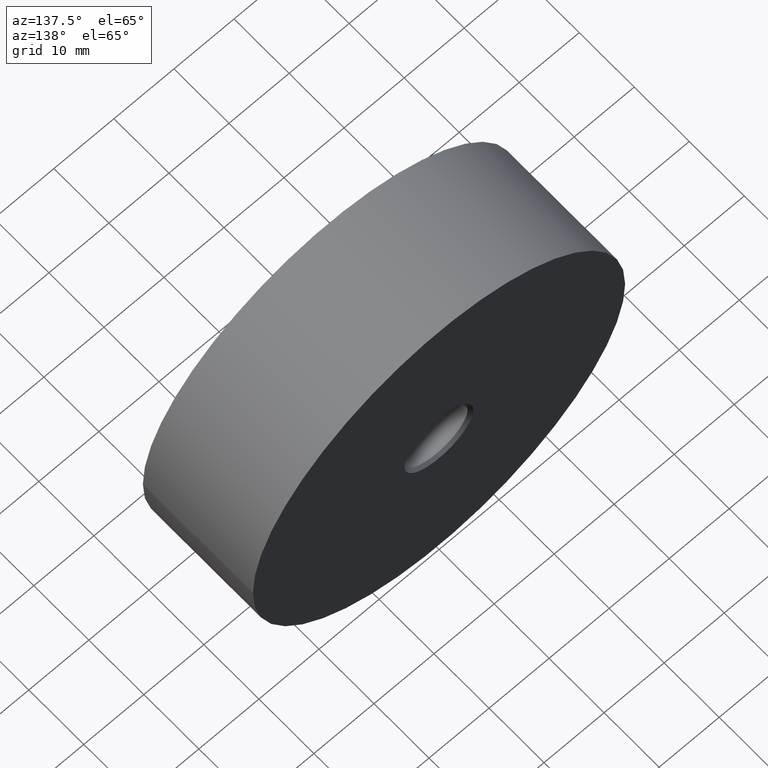
[diagram: clean part render]
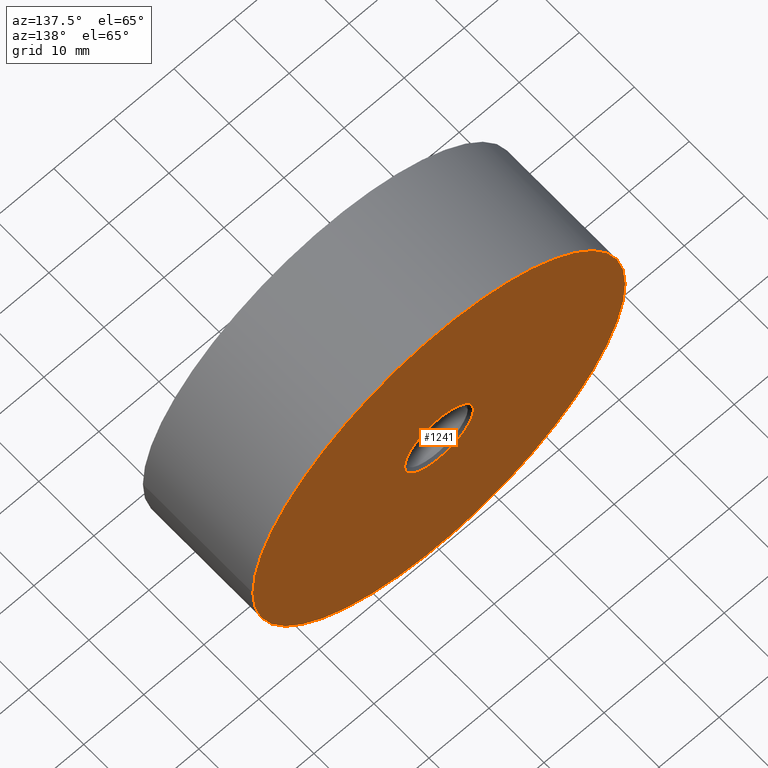
[diagram: same view with one face highlighted and labeled with its STEP entity id]
A machine part, auxiliary view. The second image highlights one B-rep face of the part: STEP entity #1241.
In plain terms, the highlighted planar face has unit normal (-0, 1, 0).
Its self-contained STEP definition (entity closure, byte-faithful):
#114 = ORIENTED_EDGE ( 'NONE', *, *, #5784, .T. ) ;
#337 = AXIS2_PLACEMENT_3D ( 'NONE', #8164, #3629, #5922 ) ;
#1241 = ADVANCED_FACE ( 'NONE', ( #14102, #9570 ), #12971, .T. ) ;
#1542 = CARTESIAN_POINT ( 'NONE',  ( -31.00000000000000711, 19.99999999999999645, 0.000000000000000000 ) ) ;
#1598 = CARTESIAN_POINT ( 'NONE',  ( 5.749999999999995559, 19.99999999999999645, 7.041719095097279894E-16 ) ) ;
#1998 = CIRCLE ( 'NONE', #337, 31.00000000000000355 ) ;
#3001 = ORIENTED_EDGE ( 'NONE', *, *, #6973, .F. ) ;
#3227 = CARTESIAN_POINT ( 'NONE',  ( -3.469446951953614189E-15, 19.99999999999999645, 0.000000000000000000 ) ) ;
#3629 = DIRECTION ( 'NONE',  ( -1.734723475976807341E-16, 1.000000000000000000, -0.000000000000000000 ) ) ;
#4315 = EDGE_LOOP ( 'NONE', ( #9784, #114 ) ) ;
#4438 = DIRECTION ( 'NONE',  ( -1.000000000000000000, -2.238352872228138170E-16, 0.000000000000000000 ) ) ;
#5427 = CARTESIAN_POINT ( 'NONE',  ( -5.750000000000000888, 19.99999999999999645, 0.000000000000000000 ) ) ;
#5674 = EDGE_CURVE ( 'NONE', #11724, #12933, #8140, .T. ) ;
#5784 = EDGE_CURVE ( 'NONE', #6417, #12884, #1998, .T. ) ;
#5922 = DIRECTION ( 'NONE',  ( -1.000000000000000000, -2.238352872228138170E-16, 0.000000000000000000 ) ) ;
#6297 = AXIS2_PLACEMENT_3D ( 'NONE', #3227, #11291, #12296 ) ;
#6320 = DIRECTION ( 'NONE',  ( -1.734723475976807341E-16, 1.000000000000000000, -0.000000000000000000 ) ) ;
#6417 = VERTEX_POINT ( 'NONE', #12088 ) ;
#6691 = EDGE_LOOP ( 'NONE', ( #14453, #3001 ) ) ;
#6973 = EDGE_CURVE ( 'NONE', #12933, #11724, #12201, .T. ) ;
#8140 = CIRCLE ( 'NONE', #6297, 5.749999999999998224 ) ;
#8164 = CARTESIAN_POINT ( 'NONE',  ( -3.469446951953614978E-15, 20.00000000000000355, 0.000000000000000000 ) ) ;
#8612 = CARTESIAN_POINT ( 'NONE',  ( -3.469446951953614189E-15, 19.99999999999999645, 0.000000000000000000 ) ) ;
#8955 = CARTESIAN_POINT ( 'NONE',  ( -3.469446951953614978E-15, 20.00000000000000355, 0.000000000000000000 ) ) ;
#9570 = FACE_BOUND ( 'NONE', #6691, .T. ) ;
#9784 = ORIENTED_EDGE ( 'NONE', *, *, #12565, .T. ) ;
#9803 = AXIS2_PLACEMENT_3D ( 'NONE', #11772, #12863, #12919 ) ;
#11291 = DIRECTION ( 'NONE',  ( -1.734723475976807341E-16, 1.000000000000000000, -0.000000000000000000 ) ) ;
#11314 = DIRECTION ( 'NONE',  ( -1.734723475976807341E-16, 1.000000000000000000, -0.000000000000000000 ) ) ;
#11724 = VERTEX_POINT ( 'NONE', #5427 ) ;
#11772 = CARTESIAN_POINT ( 'NONE',  ( -31.00000000000000711, 19.99999999999999289, 0.000000000000000000 ) ) ;
#12088 = CARTESIAN_POINT ( 'NONE',  ( 31.00000000000000000, 20.00000000000001066, 3.796405077356795115E-15 ) ) ;
#12201 = CIRCLE ( 'NONE', #12443, 5.749999999999998224 ) ;
#12296 = DIRECTION ( 'NONE',  ( -1.000000000000000000, 0.000000000000000000, 0.000000000000000000 ) ) ;
#12443 = AXIS2_PLACEMENT_3D ( 'NONE', #8612, #6320, #14233 ) ;
#12565 = EDGE_CURVE ( 'NONE', #12884, #6417, #14484, .T. ) ;
#12863 = DIRECTION ( 'NONE',  ( -1.734723475976807341E-16, 1.000000000000000000, 0.000000000000000000 ) ) ;
#12884 = VERTEX_POINT ( 'NONE', #1542 ) ;
#12919 = DIRECTION ( 'NONE',  ( -1.000000000000000000, -1.734723475976807341E-16, 0.000000000000000000 ) ) ;
#12933 = VERTEX_POINT ( 'NONE', #1598 ) ;
#12971 = PLANE ( 'NONE',  #9803 ) ;
#14102 = FACE_OUTER_BOUND ( 'NONE', #4315, .T. ) ;
#14233 = DIRECTION ( 'NONE',  ( -1.000000000000000000, 0.000000000000000000, 0.000000000000000000 ) ) ;
#14453 = ORIENTED_EDGE ( 'NONE', *, *, #5674, .F. ) ;
#14484 = CIRCLE ( 'NONE', #14728, 31.00000000000000355 ) ;
#14728 = AXIS2_PLACEMENT_3D ( 'NONE', #8955, #11314, #4438 ) ;